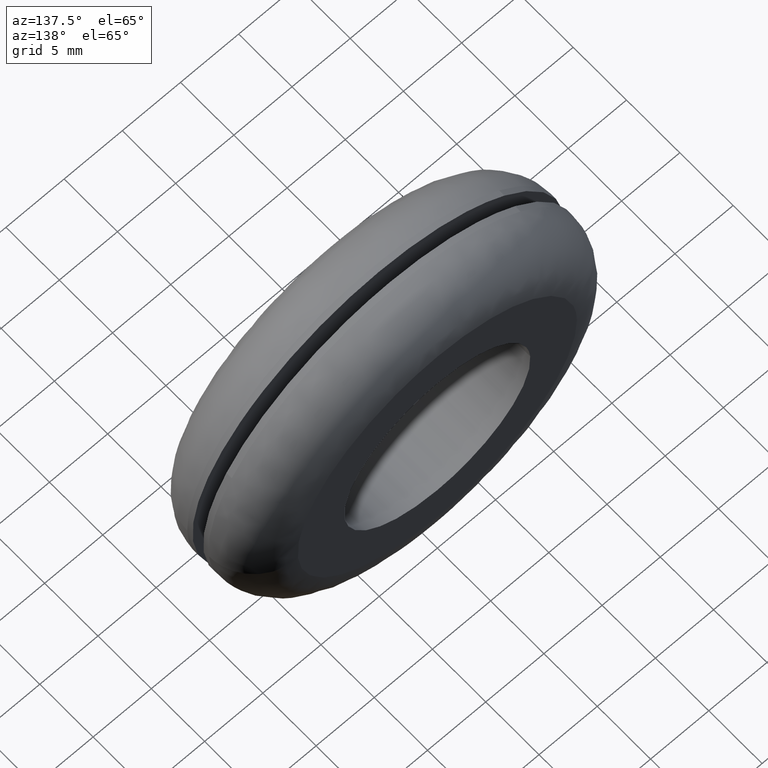
[diagram: clean part render]
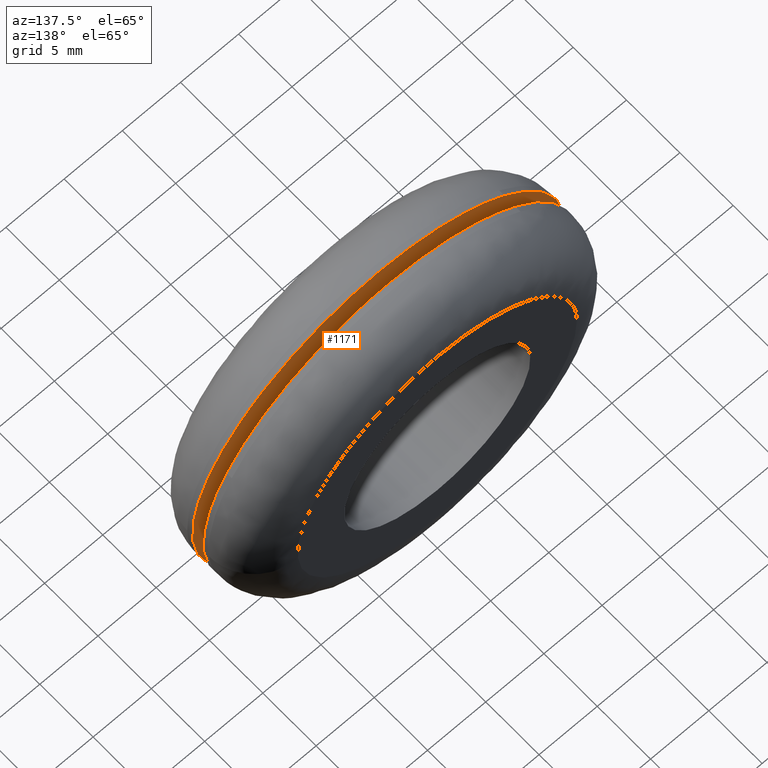
[diagram: same view with one face highlighted and labeled with its STEP entity id]
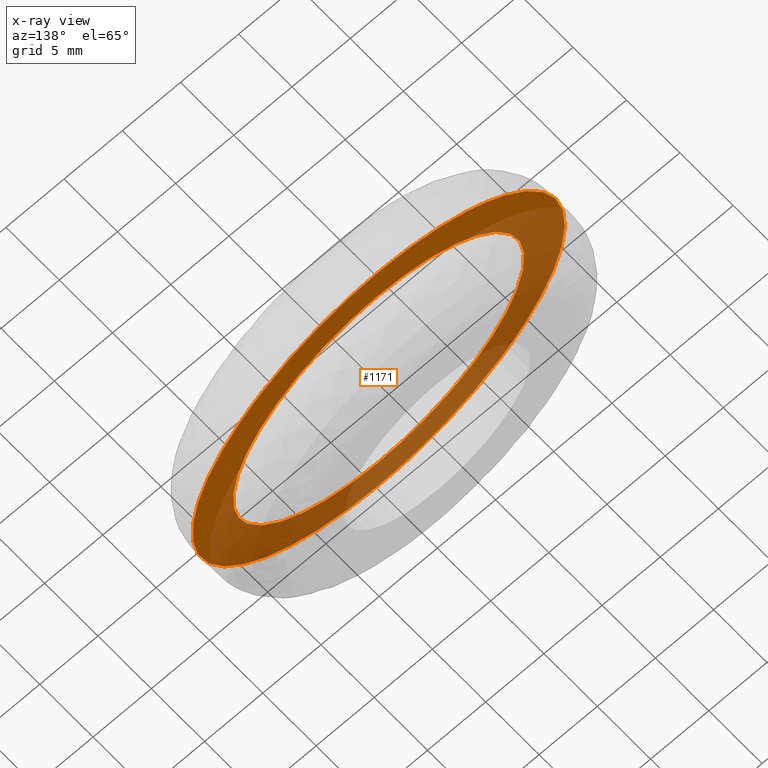
[diagram: x-ray of the same camera — body ghosted, the highlighted face saturated]
A machine part, auxiliary view. The second image highlights one B-rep face of the part: STEP entity #1171.
The next image is the same camera in x-ray: the body ghosted, the highlighted face saturated — about 57% of this face is hidden behind the body in this view.
In plain terms, the highlighted face is a freeform B-spline surface patch.
Its self-contained STEP definition (entity closure, byte-faithful):
#66=CARTESIAN_POINT('',(-10.469433983530910,4.500000000000068,-12.099212869624520));
#67=VERTEX_POINT('',#66);
#68=CARTESIAN_POINT('',(0.0,4.500000000000000,-16.0));
#69=VERTEX_POINT('',#68);
#70=CARTESIAN_POINT('',(-10.469433983530910,4.500000000000068,-12.099212869624516));
#71=CARTESIAN_POINT('',(-5.961410140961593,4.500000000000000,-16.000000000000004));
#72=CARTESIAN_POINT('',(0.0,4.500000000000000,-16.0));
#80=(BOUNDED_CURVE()B_SPLINE_CURVE(2,(#70,#71,#72),.UNSPECIFIED.,.F.,.U.)B_SPLINE_CURVE_WITH_KNOTS((3,3),(0.885882133147832,1.0),.UNSPECIFIED.)CURVE()GEOMETRIC_REPRESENTATION_ITEM()RATIONAL_B_SPLINE_CURVE((0.854663299575205,0.866302602614174,1.0))REPRESENTATION_ITEM(''));
#81=EDGE_CURVE('',#67,#69,#80,.T.);
#83=CARTESIAN_POINT('',(0.0,4.500000000000000,16.0));
#84=VERTEX_POINT('',#83);
#85=CARTESIAN_POINT('',(0.0,4.500000000000000,-16.0));
#86=CARTESIAN_POINT('',(15.999999999999998,4.500000000000000,-15.999999999999998));
#87=CARTESIAN_POINT('',(16.0,4.500000000000000,-3.061516E-016));
#88=CARTESIAN_POINT('',(15.999999999999998,4.500000000000000,15.999999999999998));
#89=CARTESIAN_POINT('',(0.0,4.500000000000000,16.0));
#97=(BOUNDED_CURVE()B_SPLINE_CURVE(2,(#85,#86,#87,#88,#89),.UNSPECIFIED.,.F.,.U.)B_SPLINE_CURVE_WITH_KNOTS((3,2,3),(0.0,0.250000000000000,0.500000000000000),.UNSPECIFIED.)CURVE()GEOMETRIC_REPRESENTATION_ITEM()RATIONAL_B_SPLINE_CURVE((1.0,0.707106781186548,1.0,0.707106781186548,1.0))REPRESENTATION_ITEM(''));
#98=EDGE_CURVE('',#69,#84,#97,.T.);
#100=CARTESIAN_POINT('',(-10.809442688117811,4.500000000000000,11.796437969671000));
#101=VERTEX_POINT('',#100);
#102=CARTESIAN_POINT('',(0.0,4.500000000000000,16.0));
#103=CARTESIAN_POINT('',(-6.222058720101623,4.500000000000000,16.0));
#104=CARTESIAN_POINT('',(-10.809442688117809,4.500000000000001,11.796437969671002));
#112=(BOUNDED_CURVE()B_SPLINE_CURVE(2,(#102,#103,#104),.UNSPECIFIED.,.F.,.U.)B_SPLINE_CURVE_WITH_KNOTS((3,3),(0.500000000000000,0.618415192864190),.UNSPECIFIED.)CURVE()GEOMETRIC_REPRESENTATION_ITEM()RATIONAL_B_SPLINE_CURVE((1.0,0.861267972022367,0.853959782840026))REPRESENTATION_ITEM(''));
#113=EDGE_CURVE('',#84,#101,#112,.T.);
#210=CARTESIAN_POINT('',(-10.809442688117809,4.500000000000001,11.796437969671002));
#211=CARTESIAN_POINT('',(-16.0,4.500000000000002,7.040169520245899));
#212=CARTESIAN_POINT('',(-16.0,4.500000000000000,-3.061516E-016));
#213=CARTESIAN_POINT('',(-16.000000000000004,4.500000000000001,-7.313621334589896));
#214=CARTESIAN_POINT('',(-10.469433983530910,4.500000000000068,-12.099212869624514));
#222=(BOUNDED_CURVE()B_SPLINE_CURVE(2,(#210,#211,#212,#213,#214),.UNSPECIFIED.,.F.,.U.)B_SPLINE_CURVE_WITH_KNOTS((3,2,3),(0.618415192864190,0.750000000000000,0.885882133147832),.UNSPECIFIED.)CURVE()GEOMETRIC_REPRESENTATION_ITEM()RATIONAL_B_SPLINE_CURVE((0.853959782840026,0.845838809164181,1.0,0.840804178572373,0.854663299575205))REPRESENTATION_ITEM(''));
#223=EDGE_CURVE('',#101,#67,#222,.T.);
#282=CARTESIAN_POINT('',(12.412620618392291,4.500000000000158,-1.475414986941843));
#283=VERTEX_POINT('',#282);
#284=CARTESIAN_POINT('',(0.0,4.500000000000000,12.500000000000000));
#285=VERTEX_POINT('',#284);
#286=CARTESIAN_POINT('',(12.412620618392285,4.500000000000158,-1.475414986941843));
#287=CARTESIAN_POINT('',(12.500000000000002,4.500000000000000,-0.740294954082926));
#288=CARTESIAN_POINT('',(12.500000000000000,4.500000000000000,-3.061516E-016));
#289=CARTESIAN_POINT('',(12.499999999999998,4.500000000000000,12.499999999999998));
#290=CARTESIAN_POINT('',(0.0,4.500000000000000,12.500000000000000));
#298=(BOUNDED_CURVE()B_SPLINE_CURVE(2,(#286,#287,#288,#289,#290),.UNSPECIFIED.,.F.,.U.)B_SPLINE_CURVE_WITH_KNOTS((3,2,3),(0.229562649784764,0.250000000000000,0.500000000000000),.UNSPECIFIED.)CURVE()GEOMETRIC_REPRESENTATION_ITEM()RATIONAL_B_SPLINE_CURVE((0.956027099682864,0.976056154845766,1.0,0.707106781186547,1.0))REPRESENTATION_ITEM(''));
#299=EDGE_CURVE('',#283,#285,#298,.T.);
#340=CARTESIAN_POINT('',(-12.476685306703670,4.500000000000192,0.763101407059438));
#341=VERTEX_POINT('',#340);
#347=CARTESIAN_POINT('',(0.0,4.500000000000000,12.500000000000000));
#348=CARTESIAN_POINT('',(-11.758830875770775,4.500000000000000,12.499999999999998));
#349=CARTESIAN_POINT('',(-12.476685306703670,4.500000000000192,0.763101407059438));
#357=(BOUNDED_CURVE()B_SPLINE_CURVE(2,(#347,#348,#349),.UNSPECIFIED.,.F.,.U.)B_SPLINE_CURVE_WITH_KNOTS((3,3),(0.500000000000000,0.739333036051963),.UNSPECIFIED.)CURVE()GEOMETRIC_REPRESENTATION_ITEM()RATIONAL_B_SPLINE_CURVE((1.0,0.719603906809378,0.976072199862122))REPRESENTATION_ITEM(''));
#358=EDGE_CURVE('',#285,#341,#357,.T.);
#381=CARTESIAN_POINT('',(0.0,4.500000000000000,-12.500000000000000));
#382=VERTEX_POINT('',#381);
#383=CARTESIAN_POINT('',(0.0,4.500000000000000,-12.500000000000000));
#384=CARTESIAN_POINT('',(11.102193235403265,4.500000000000000,-12.500000000000000));
#385=CARTESIAN_POINT('',(12.412620618392285,4.500000000000158,-1.475414986941843));
#393=(BOUNDED_CURVE()B_SPLINE_CURVE(2,(#383,#384,#385),.UNSPECIFIED.,.F.,.U.)B_SPLINE_CURVE_WITH_KNOTS((3,3),(0.0,0.229562649784764),.UNSPECIFIED.)CURVE()GEOMETRIC_REPRESENTATION_ITEM()RATIONAL_B_SPLINE_CURVE((1.0,0.731050626340781,0.956027099682864))REPRESENTATION_ITEM(''));
#394=EDGE_CURVE('',#382,#283,#393,.T.);
#396=CARTESIAN_POINT('',(-12.476685306703670,4.500000000000192,0.763101407059438));
#397=CARTESIAN_POINT('',(-12.499999999999996,4.500000000000001,0.381906865186920));
#398=CARTESIAN_POINT('',(-12.500000000000000,4.500000000000000,-3.061516E-016));
#399=CARTESIAN_POINT('',(-12.499999999999998,4.500000000000000,-12.499999999999998));
#400=CARTESIAN_POINT('',(0.0,4.500000000000000,-12.500000000000000));
#408=(BOUNDED_CURVE()B_SPLINE_CURVE(2,(#396,#397,#398,#399,#400),.UNSPECIFIED.,.F.,.U.)B_SPLINE_CURVE_WITH_KNOTS((3,2,3),(0.739333036051963,0.750000000000000,1.0),.UNSPECIFIED.)CURVE()GEOMETRIC_REPRESENTATION_ITEM()RATIONAL_B_SPLINE_CURVE((0.976072199862122,0.987502874377170,1.0,0.707106781186547,1.0))REPRESENTATION_ITEM(''));
#409=EDGE_CURVE('',#341,#382,#408,.T.);
#1154=CARTESIAN_POINT('',(-17.596699713006011,4.500000000000000,17.598399937977788));
#1155=CARTESIAN_POINT('',(-17.596699713006011,4.500000000000000,-17.598400796284679));
#1156=CARTESIAN_POINT('',(17.598319910302148,4.500000000000000,17.598399937977788));
#1157=CARTESIAN_POINT('',(17.598319910302148,4.500000000000000,-17.598400796284679));
#1158=B_SPLINE_SURFACE_WITH_KNOTS('',1,1,((#1154,#1156),(#1155,#1157)),.UNSPECIFIED.,.F.,.F.,.U.,(2,2),(2,2),(0.0,35.196800734262467),(0.0,35.195019623308163),.UNSPECIFIED.);
#1159=ORIENTED_EDGE('',*,*,#81,.F.);
#1160=ORIENTED_EDGE('',*,*,#223,.F.);
#1161=ORIENTED_EDGE('',*,*,#113,.F.);
#1162=ORIENTED_EDGE('',*,*,#98,.F.);
#1163=EDGE_LOOP('',(#1159,#1160,#1161,#1162));
#1164=FACE_OUTER_BOUND('',#1163,.T.);
#1165=ORIENTED_EDGE('',*,*,#358,.T.);
#1166=ORIENTED_EDGE('',*,*,#409,.T.);
#1167=ORIENTED_EDGE('',*,*,#394,.T.);
#1168=ORIENTED_EDGE('',*,*,#299,.T.);
#1169=EDGE_LOOP('',(#1165,#1166,#1167,#1168));
#1170=FACE_BOUND('',#1169,.T.);
#1171=ADVANCED_FACE('',(#1164,#1170),#1158,.F.);